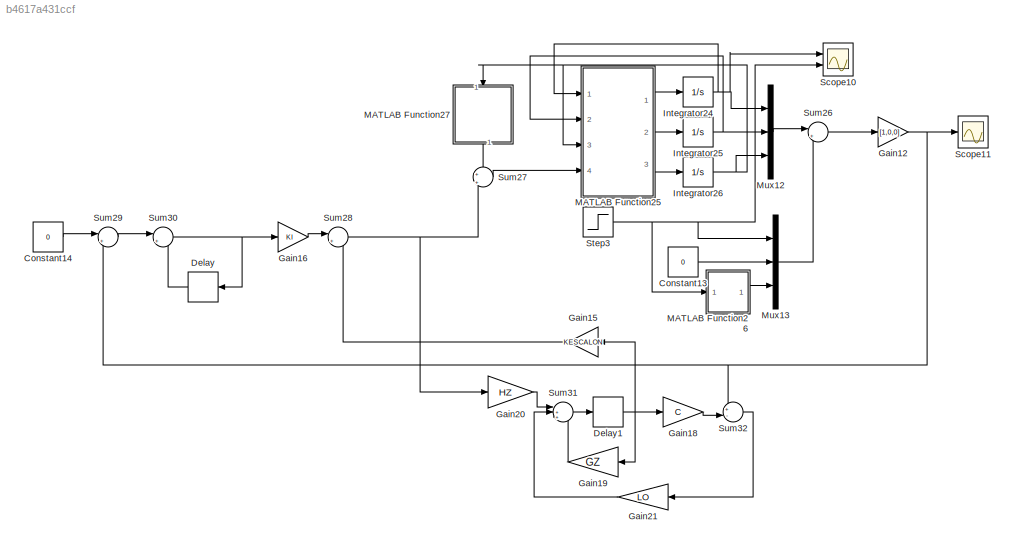
MODEL slx_b4617a431ccf
KIND model
CONFIG AbsTol = auto
CONFIG EnableMultiTasking = off
CONFIG FixedStep = auto
CONFIG MaxStep = auto
CONFIG MinStep = auto
CONFIG RelTol = 1e-3
CONFIG SampleTimeConstraint = Unconstrained
CONFIG Solver = VariableStepAuto
CONFIG SolverName = VariableStepAuto
CONFIG StartTime = 0.0
CONFIG StopTime = 10.0
BLOCK [Constant] Constant13
  Value = 0
BLOCK [Constant] Constant14
  Value = 0
BLOCK [Delay] Delay
  DelayLength = 1
  InputPortMap = u0
  Ports = [1, 1]
  SampleTime = 0.05
BLOCK [Delay] Delay1
  DelayLength = 1
  InputPortMap = u0
  Ports = [1, 1]
  SampleTime = 0.05
BLOCK [Gain] Gain12
  Gain = [1,0,0]
  Multiplication = Matrix(K*u)
  OutDataTypeStr = Inherit: Inherit via internal rule
  ParamDataTypeStr = Inherit: Inherit via internal rule
  SaturateOnIntegerOverflow = off
BLOCK [Gain] Gain15
  Gain = KESCALON
  Multiplication = Matrix(K*u)
  OutDataTypeStr = Inherit: Inherit via internal rule
  ParamDataTypeStr = Inherit: Inherit via internal rule
  SaturateOnIntegerOverflow = off
BLOCK [Gain] Gain16
  Gain = KI
  OutDataTypeStr = Inherit: Inherit via internal rule
  ParamDataTypeStr = Inherit: Inherit via internal rule
  SaturateOnIntegerOverflow = off
BLOCK [Gain] Gain18
  Gain = C
  Multiplication = Matrix(K*u)
  OutDataTypeStr = Inherit: Inherit via internal rule
  ParamDataTypeStr = Inherit: Inherit via internal rule
  SaturateOnIntegerOverflow = off
BLOCK [Gain] Gain19
  Gain = GZ
  Multiplication = Matrix(K*u)
  OutDataTypeStr = Inherit: Inherit via internal rule
  ParamDataTypeStr = Inherit: Inherit via internal rule
  SaturateOnIntegerOverflow = off
BLOCK [Gain] Gain20
  Gain = HZ
  Multiplication = Matrix(K*u)
  OutDataTypeStr = Inherit: Inherit via internal rule
  ParamDataTypeStr = Inherit: Inherit via internal rule
  SaturateOnIntegerOverflow = off
BLOCK [Gain] Gain21
  Gain = LO
  Multiplication = Matrix(K*u)
  OutDataTypeStr = Inherit: Inherit via internal rule
  ParamDataTypeStr = Inherit: Inherit via internal rule
  SaturateOnIntegerOverflow = off
BLOCK [Integrator] Integrator24
  InitialCondition = 5e-3
  Ports = [1, 1]
BLOCK [Integrator] Integrator25
  Ports = [1, 1]
BLOCK [Integrator] Integrator26
  Ports = [1, 1]
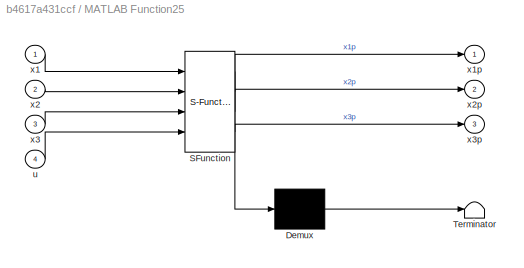
BLOCK [SubSystem] MATLAB Function25
  ErrorFcn = Stateflow.Translate.translate
  PermitHierarchicalResolution = ExplicitOnly
  Ports = [4, 3]
  RequestExecContextInheritance = off
  SFBlockType = MATLAB Function
  TreatAsAtomicUnit = on
BLOCK [Demux] MATLAB Function25/ Demux 
  Outputs = 1
  Ports = [1, 1]
BLOCK [S-Function] MATLAB Function25/ SFunction 
  EnableBusSupport = on
  FunctionName = sf_sfun
  PortCounts = [4 4]
  Ports = [4, 4]
  SFcnIsStateOwnerBlock = off
  SFunctionDeploymentMode = off
  Tag = Stateflow S-Function num6 26
BLOCK [Terminator] MATLAB Function25/ Terminator 
BLOCK [Inport] MATLAB Function25/u
  IconDisplay = Port number
  Port = 4
BLOCK [Inport] MATLAB Function25/x1
  IconDisplay = Port number
BLOCK [Outport] MATLAB Function25/x1p
  IconDisplay = Port number
BLOCK [Inport] MATLAB Function25/x2
  IconDisplay = Port number
  Port = 2
BLOCK [Outport] MATLAB Function25/x2p
  IconDisplay = Port number
  Port = 2
BLOCK [Inport] MATLAB Function25/x3
  IconDisplay = Port number
  Port = 3
BLOCK [Outport] MATLAB Function25/x3p
  IconDisplay = Port number
  Port = 3
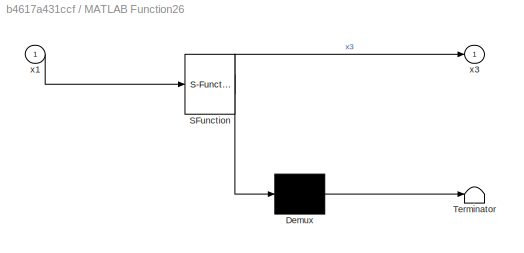
BLOCK [SubSystem] MATLAB Function26
  ErrorFcn = Stateflow.Translate.translate
  PermitHierarchicalResolution = ExplicitOnly
  Ports = [1, 1]
  RequestExecContextInheritance = off
  SFBlockType = MATLAB Function
  TreatAsAtomicUnit = on
BLOCK [Demux] MATLAB Function26/ Demux 
  Outputs = 1
  Ports = [1, 1]
BLOCK [S-Function] MATLAB Function26/ SFunction 
  EnableBusSupport = on
  FunctionName = sf_sfun
  PortCounts = [1 2]
  Ports = [1, 2]
  SFcnIsStateOwnerBlock = off
  SFunctionDeploymentMode = off
  Tag = Stateflow S-Function num6 27
BLOCK [Terminator] MATLAB Function26/ Terminator 
BLOCK [Inport] MATLAB Function26/x1
  IconDisplay = Port number
BLOCK [Outport] MATLAB Function26/x3
  IconDisplay = Port number
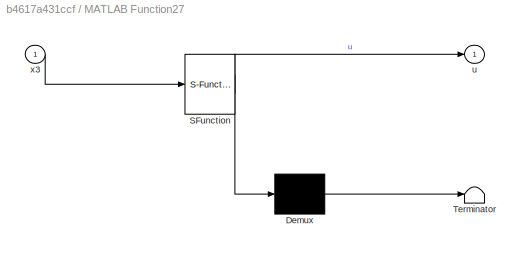
BLOCK [SubSystem] MATLAB Function27
  ErrorFcn = Stateflow.Translate.translate
  PermitHierarchicalResolution = ExplicitOnly
  Ports = [1, 1]
  RequestExecContextInheritance = off
  SFBlockType = MATLAB Function
  TreatAsAtomicUnit = on
BLOCK [Demux] MATLAB Function27/ Demux 
  Outputs = 1
  Ports = [1, 1]
BLOCK [S-Function] MATLAB Function27/ SFunction 
  EnableBusSupport = on
  FunctionName = sf_sfun
  PortCounts = [1 2]
  Ports = [1, 2]
  SFcnIsStateOwnerBlock = off
  SFunctionDeploymentMode = off
  Tag = Stateflow S-Function num6 28
BLOCK [Terminator] MATLAB Function27/ Terminator 
BLOCK [Outport] MATLAB Function27/u
  IconDisplay = Port number
BLOCK [Inport] MATLAB Function27/x3
  IconDisplay = Port number
BLOCK [Mux] Mux12
  DisplayOption = bar
  Inputs = 3
  Ports = [3, 1]
BLOCK [Mux] Mux13
  DisplayOption = bar
  Inputs = 3
  Ports = [3, 1]
BLOCK [Scope] Scope10
  Floating = off
  NumInputPorts = 2
  Ports = [2]
  ScopeSpecificationString = Simulink.scopes.TimeScopeBlockCfg('CurrentConfiguration', extmgr.ConfigurationSet(extmgr.Configuration('Core','General UI',true,'FigureColor',[0.8 0.8 0.8]),extmgr.Configuration('Core','Source UI',true),extmgr.Configuration('Sources','WiredSimulink',true,'DataLoggingVariableName','ScopeData1'),extmgr.Configuration('Visuals','Time Domain',true,'SerializedDisplays',{struct('MinYLimReal','-2434632493...<+1747ch>
BLOCK [Scope] Scope11
  Floating = off
  NumInputPorts = 1
  Ports = [1]
  ScopeSpecificationString = Simulink.scopes.TimeScopeBlockCfg('CurrentConfiguration', extmgr.ConfigurationSet(extmgr.Configuration('Core','General UI',true),extmgr.Configuration('Core','Source UI',true),extmgr.Configuration('Sources','WiredSimulink',true),extmgr.Configuration('Visuals','Time Domain',true,'SerializedDisplays',{struct('MinYLimReal','-0.03316','MaxYLimReal','0.04846','YLabelReal','','MinYLimMag','0.00000','MaxY...<+1325ch>
BLOCK [Step] Step3
  After = 10e-3
  Before = 5e-3
  SampleTime = 0
  Time = 0
BLOCK [Sum] Sum26
  IconShape = round
  InputSameDT = off
  Inputs = |+-
  OutDataTypeStr = Inherit: Inherit via internal rule
  Ports = [2, 1]
  SaturateOnIntegerOverflow = off
BLOCK [Sum] Sum27
  IconShape = round
  InputSameDT = off
  Inputs = +|+
  OutDataTypeStr = Inherit: Inherit via internal rule
  Ports = [2, 1]
  SaturateOnIntegerOverflow = off
BLOCK [Sum] Sum28
  IconShape = round
  InputSameDT = off
  Inputs = |+-
  OutDataTypeStr = Inherit: Inherit via internal rule
  Ports = [2, 1]
  SaturateOnIntegerOverflow = off
BLOCK [Sum] Sum29
  IconShape = round
  InputSameDT = off
  Inputs = |+-
  OutDataTypeStr = Inherit: Inherit via internal rule
  Ports = [2, 1]
  SaturateOnIntegerOverflow = off
BLOCK [Sum] Sum30
  IconShape = round
  InputSameDT = off
  Inputs = |++
  OutDataTypeStr = Inherit: Inherit via internal rule
  Ports = [2, 1]
  SaturateOnIntegerOverflow = off
BLOCK [Sum] Sum31
  IconShape = round
  InputSameDT = off
  Inputs = |+++
  OutDataTypeStr = Inherit: Inherit via internal rule
  Ports = [3, 1]
  SaturateOnIntegerOverflow = off
BLOCK [Sum] Sum32
  IconShape = round
  InputSameDT = off
  Inputs = +-|
  OutDataTypeStr = Inherit: Inherit via internal rule
  Ports = [2, 1]
  SaturateOnIntegerOverflow = off
LINE Constant13:1 -> Mux13:2
LINE Constant14:1 -> Sum29:1
NET Delay1:1 -> Gain15:1, Gain18:1, Gain19:1
LINE Delay:1 -> Sum30:2
NET Gain12:1 -> Scope11:1, Sum29:2, Sum32:1
LINE Gain15:1 -> Sum28:2
LINE Gain16:1 -> Sum28:1
LINE Gain18:1 -> Sum32:2
LINE Gain19:1 -> Sum31:3
LINE Gain20:1 -> Sum31:1
LINE Gain21:1 -> Sum31:2
NET Integrator24:1 -> MATLAB Function25:1, Mux12:1, Scope10:1
NET Integrator25:1 -> MATLAB Function25:2, Mux12:2
NET Integrator26:1 -> MATLAB Function25:3, MATLAB Function27:1, Mux12:3
LINE MATLAB Function25:1 -> Integrator24:1
LINE MATLAB Function25:2 -> Integrator25:1
LINE MATLAB Function25:3 -> Integrator26:1
LINE MATLAB Function26:1 -> Mux13:3
LINE MATLAB Function27:1 -> Sum27:1
LINE Mux12:1 -> Sum26:1
LINE Mux13:1 -> Sum26:2
NET Step3:1 -> MATLAB Function26:1, Mux13:1, Scope10:2
LINE Sum26:1 -> Gain12:1
LINE Sum27:1 -> MATLAB Function25:4
NET Sum28:1 -> Gain20:1, Sum27:2
LINE Sum29:1 -> Sum30:1
NET Sum30:1 -> Delay:1, Gain16:1
LINE Sum31:1 -> Delay1:1
LINE Sum32:1 -> Gain21:1
note: NET lines group one-source signal fan-out (src -> all destinations, sorted); 1:1 wires keep LINE
CHART MATLAB Function25 states=1 transitions=1
  STATE_LABEL 'eML_blk_kernel()'
  STATE_LABEL 'SCRIPT:\nfunction [x1p,x2p,x3p] = planta(x1,x2,x3,u)\nc=0.1;\nm=0.01;\nL=100e-3;\nr=10;\ng=9.81;\n\nx1p=x2;\nx2p=g-(c/m)*((x3^2)/x1);\nx3p=-(r/L)*x3+(1/L)*u;\n\n\n'
CHART MATLAB Function26 states=1 transitions=1
  STATE_LABEL 'eML_blk_kernel()'
  STATE_LABEL 'SCRIPT:\nfunction x3  = fcn(x1)\nc=1\nm=0.1\nL=0.01\nr=1\ng=9.81\n\nx3=sqrt((m*g*x1)/c);\n\n\n'
CHART MATLAB Function27 states=1 transitions=1
  STATE_LABEL 'eML_blk_kernel()'
  STATE_LABEL 'SCRIPT:\nfunction u  = u(x3)\nc=1\nm=0.1\nL=0.01\nr=1\ng=9.81\n\nu=r*x3;\n\n\n'
